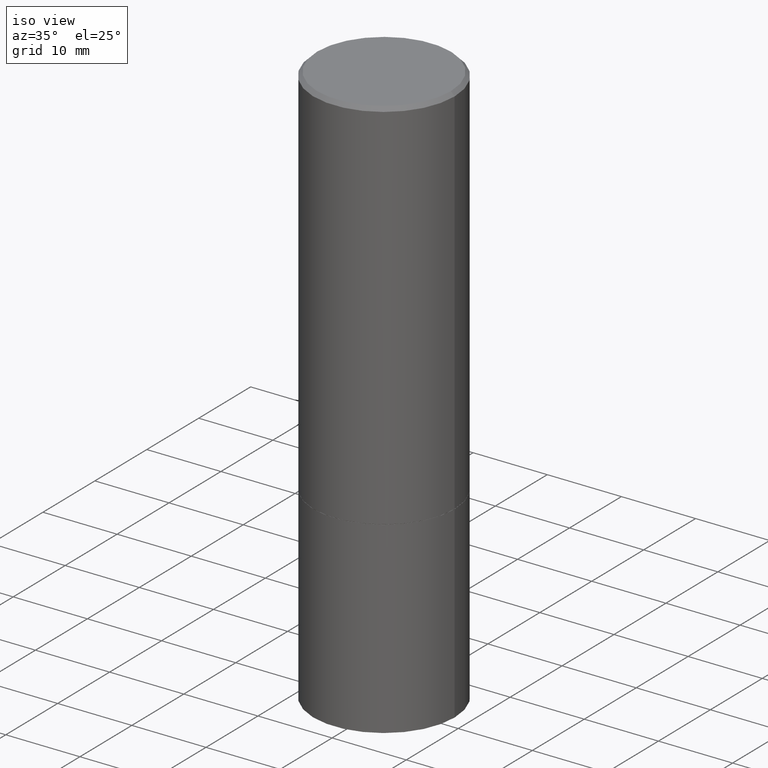
[diagram: clean part render]
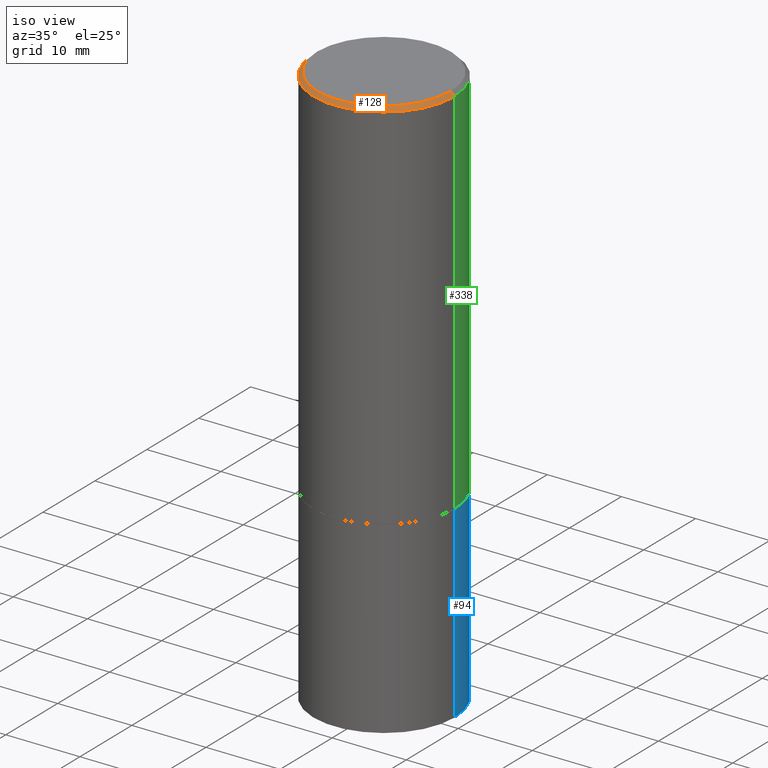
[diagram: same view with three faces highlighted in distinct colors, each labeled with its STEP entity id]
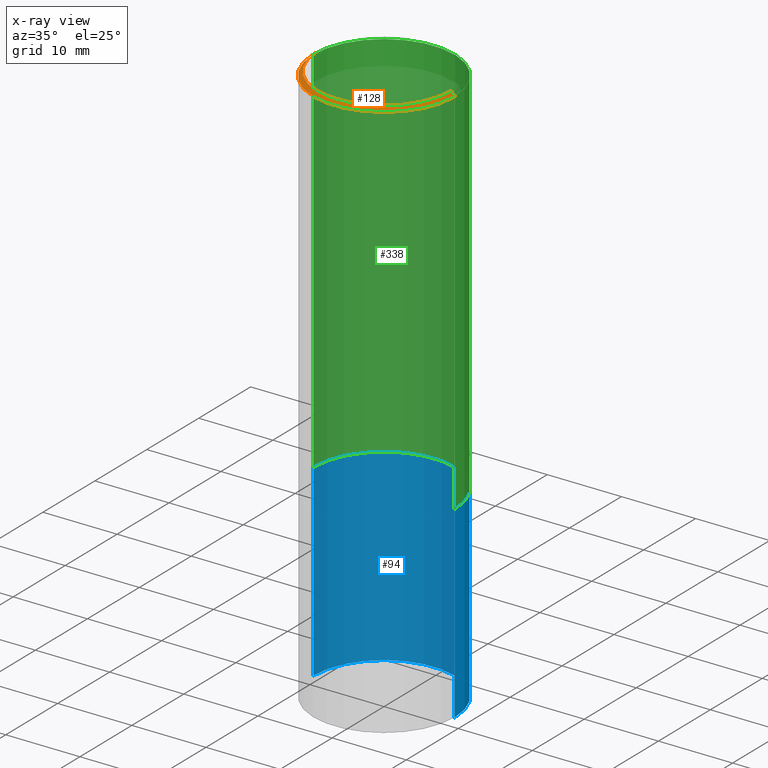
[diagram: x-ray of the same camera — body ghosted, the three highlighted faces saturated]
A machine part, iso view with three faces highlighted in distinct colors.
The next image is the same camera in x-ray (body ghosted, the three faces saturated) — at least one of them is partly hidden behind the body in this view.
Their STEP definitions:

[orange] entity #128 — the highlighted conical surface has half-angle 45 deg.
#4 = CIRCLE ( 'NONE', #238, 0.3749999999999996669 ) ;
#11 = DIRECTION ( 'NONE',  ( 0.7071067811865472397, -7.319954787623254468E-15, -0.7071067811865477948 ) ) ;
#19 = FACE_OUTER_BOUND ( 'NONE', #244, .T. ) ;
#28 = CARTESIAN_POINT ( 'NONE',  ( 0.3749999999999996669, -2.642516375941185662E-15, -0.02000000000000007327 ) ) ;
#35 = LINE ( 'NONE', #356, #44 ) ;
#40 = ORIENTED_EDGE ( 'NONE', *, *, #173, .F. ) ;
#42 = CARTESIAN_POINT ( 'NONE',  ( -1.043851414335219820E-46, 1.490343170380447200E-32, 4.268512490100411279E-18 ) ) ;
#44 = VECTOR ( 'NONE', #11, 39.37007874015748143 ) ;
#72 = CARTESIAN_POINT ( 'NONE',  ( 4.890937612370290675E-31, -6.982962677686316261E-17, -0.02000000000000007327 ) ) ;
#80 = ORIENTED_EDGE ( 'NONE', *, *, #155, .T. ) ;
#86 = VECTOR ( 'NONE', #310, 39.37007874015748143 ) ;
#102 = DIRECTION ( 'NONE',  ( 2.445468806185136597E-29, -3.491481338843145583E-15, -1.000000000000000000 ) ) ;
#106 = CARTESIAN_POINT ( 'NONE',  ( 0.3549999999999996492, -2.538996582575038287E-15, 4.268512490117958041E-18 ) ) ;
#107 = VERTEX_POINT ( 'NONE', #255 ) ;
#110 = EDGE_CURVE ( 'NONE', #107, #172, #235, .T. ) ;
#120 = CONICAL_SURFACE ( 'NONE', #353, 0.3749999999999996669, 0.7853981633974479459 ) ;
#128 = ADVANCED_FACE ( 'NONE', ( #19 ), #120, .T. ) ;
#134 = DIRECTION ( 'NONE',  ( 1.000000000000000000, -6.982962677686265922E-15, 4.876231632511992667E-29 ) ) ;
#141 = ORIENTED_EDGE ( 'NONE', *, *, #110, .T. ) ;
#147 = CIRCLE ( 'NONE', #254, 0.3549999999999996492 ) ;
#155 = EDGE_CURVE ( 'NONE', #172, #306, #4, .T. ) ;
#162 = DIRECTION ( 'NONE',  ( -2.445468806185136597E-29, 3.491481338843145583E-15, 1.000000000000000000 ) ) ;
#163 = ORIENTED_EDGE ( 'NONE', *, *, #192, .F. ) ;
#172 = VERTEX_POINT ( 'NONE', #324 ) ;
#173 = EDGE_CURVE ( 'NONE', #193, #306, #35, .T. ) ;
#192 = EDGE_CURVE ( 'NONE', #107, #193, #147, .T. ) ;
#193 = VERTEX_POINT ( 'NONE', #106 ) ;
#215 = DIRECTION ( 'NONE',  ( -1.000000000000000000, 6.982962677686266711E-15, 0.000000000000000000 ) ) ;
#235 = LINE ( 'NONE', #346, #86 ) ;
#237 = DIRECTION ( 'NONE',  ( -2.445468806185136597E-29, 3.491481338843145583E-15, 1.000000000000000000 ) ) ;
#238 = AXIS2_PLACEMENT_3D ( 'NONE', #72, #237, #245 ) ;
#244 = EDGE_LOOP ( 'NONE', ( #40, #163, #141, #80 ) ) ;
#245 = DIRECTION ( 'NONE',  ( 1.000000000000000000, -6.982962677686266711E-15, 0.000000000000000000 ) ) ;
#254 = AXIS2_PLACEMENT_3D ( 'NONE', #42, #162, #134 ) ;
#255 = CARTESIAN_POINT ( 'NONE',  ( -0.3549999999999996492, 2.513866563967053097E-15, 4.268512490082953109E-18 ) ) ;
#295 = CARTESIAN_POINT ( 'NONE',  ( 4.890937612370290675E-31, -6.982962677686316261E-17, -0.02000000000000007327 ) ) ;
#306 = VERTEX_POINT ( 'NONE', #28 ) ;
#310 = DIRECTION ( 'NONE',  ( -0.7071067811865472397, 2.468850131082253905E-15, -0.7071067811865477948 ) ) ;
#324 = CARTESIAN_POINT ( 'NONE',  ( -0.3749999999999996669, 2.548781377355484352E-15, -0.02000000000000007327 ) ) ;
#346 = CARTESIAN_POINT ( 'NONE',  ( -0.3749999999999996669, 2.548781377355484352E-15, -0.02000000000000007327 ) ) ;
#353 = AXIS2_PLACEMENT_3D ( 'NONE', #295, #102, #215 ) ;
#356 = CARTESIAN_POINT ( 'NONE',  ( 0.3749999999999996669, -2.642516375941185662E-15, -0.02000000000000007327 ) ) ;

[blue] entity #94 — the highlighted cylindrical surface (partial cylindrical patch) has radius 9.525 mm, axis along (-0, 0, 1).
#7 = CARTESIAN_POINT ( 'NONE',  ( 0.000000000000000000, 0.000000000000000000, 0.000000000000000000 ) ) ;
#9 = EDGE_CURVE ( 'NONE', #49, #111, #161, .T. ) ;
#18 = EDGE_LOOP ( 'NONE', ( #45, #333, #269, #364 ) ) ;
#30 = LINE ( 'NONE', #198, #38 ) ;
#31 = EDGE_CURVE ( 'NONE', #222, #49, #151, .T. ) ;
#37 = AXIS2_PLACEMENT_3D ( 'NONE', #224, #267, #216 ) ;
#38 = VECTOR ( 'NONE', #142, 39.37007874015748143 ) ;
#45 = ORIENTED_EDGE ( 'NONE', *, *, #66, .T. ) ;
#49 = VERTEX_POINT ( 'NONE', #344 ) ;
#53 = CARTESIAN_POINT ( 'NONE',  ( -0.3750000000000000555, -6.064168088007489246E-15, -2.000000000000000444 ) ) ;
#61 = CYLINDRICAL_SURFACE ( 'NONE', #278, 0.3750000000000000555 ) ;
#66 = EDGE_CURVE ( 'NONE', #222, #67, #152, .T. ) ;
#67 = VERTEX_POINT ( 'NONE', #91 ) ;
#91 = CARTESIAN_POINT ( 'NONE',  ( -0.3750000000000000555, -6.064168088007489246E-15, -3.000000000000000444 ) ) ;
#94 = ADVANCED_FACE ( 'NONE', ( #202 ), #61, .T. ) ;
#111 = VERTEX_POINT ( 'NONE', #53 ) ;
#119 = DIRECTION ( 'NONE',  ( -2.445468806185136597E-29, 3.491481338843145583E-15, 1.000000000000000000 ) ) ;
#139 = VECTOR ( 'NONE', #180, 39.37007874015748143 ) ;
#142 = DIRECTION ( 'NONE',  ( -2.445468806185136877E-29, 3.491481338843145188E-15, 1.000000000000000000 ) ) ;
#150 = CARTESIAN_POINT ( 'NONE',  ( 7.336406418555409790E-29, -1.047444401652943635E-14, -3.000000000000000444 ) ) ;
#151 = LINE ( 'NONE', #233, #139 ) ;
#152 = CIRCLE ( 'NONE', #211, 0.3750000000000000555 ) ;
#161 = CIRCLE ( 'NONE', #37, 0.3750000000000000555 ) ;
#180 = DIRECTION ( 'NONE',  ( -2.445468806185136877E-29, 3.491481338843145188E-15, 1.000000000000000000 ) ) ;
#198 = CARTESIAN_POINT ( 'NONE',  ( -0.3750000000000000555, 2.664535259100376091E-15, -1.844600658845589598E-29 ) ) ;
#202 = FACE_OUTER_BOUND ( 'NONE', #18, .T. ) ;
#206 = DIRECTION ( 'NONE',  ( -2.445468806185136597E-29, 3.491481338843145583E-15, 1.000000000000000000 ) ) ;
#211 = AXIS2_PLACEMENT_3D ( 'NONE', #150, #206, #317 ) ;
#216 = DIRECTION ( 'NONE',  ( 1.000000000000000000, -6.982962677686266711E-15, 0.000000000000000000 ) ) ;
#219 = CARTESIAN_POINT ( 'NONE',  ( 0.3750000000000000555, -1.309305502066178795E-14, -3.000000000000000444 ) ) ;
#222 = VERTEX_POINT ( 'NONE', #219 ) ;
#224 = CARTESIAN_POINT ( 'NONE',  ( 4.890937612370273754E-29, -6.982962677686291954E-15, -2.000000000000000444 ) ) ;
#233 = CARTESIAN_POINT ( 'NONE',  ( 0.3750000000000000555, -2.618611004132350016E-15, 1.828566290923476203E-29 ) ) ;
#267 = DIRECTION ( 'NONE',  ( -2.445468806185136597E-29, 3.491481338843145583E-15, 1.000000000000000000 ) ) ;
#269 = ORIENTED_EDGE ( 'NONE', *, *, #9, .F. ) ;
#277 = DIRECTION ( 'NONE',  ( 1.000000000000000000, -6.982962677686265922E-15, 4.876176775795935793E-29 ) ) ;
#278 = AXIS2_PLACEMENT_3D ( 'NONE', #7, #119, #277 ) ;
#290 = EDGE_CURVE ( 'NONE', #67, #111, #30, .T. ) ;
#317 = DIRECTION ( 'NONE',  ( 1.000000000000000000, -6.982962677686266711E-15, 0.000000000000000000 ) ) ;
#333 = ORIENTED_EDGE ( 'NONE', *, *, #290, .T. ) ;
#344 = CARTESIAN_POINT ( 'NONE',  ( 0.3750000000000000555, -9.601573681818641971E-15, -2.000000000000000444 ) ) ;
#364 = ORIENTED_EDGE ( 'NONE', *, *, #31, .F. ) ;

[green] entity #338 — the highlighted cylindrical surface (partial cylindrical patch) has radius 9.525 mm, axis along (-0, 0, 1).
#3 = CARTESIAN_POINT ( 'NONE',  ( -0.3749999999999999445, -8.601151524617780590E-16, -1.999000000000000110 ) ) ;
#26 = FACE_OUTER_BOUND ( 'NONE', #77, .T. ) ;
#28 = CARTESIAN_POINT ( 'NONE',  ( 0.3749999999999996669, -2.642516375941185662E-15, -0.02000000000000007327 ) ) ;
#41 = ORIENTED_EDGE ( 'NONE', *, *, #266, .T. ) ;
#51 = VERTEX_POINT ( 'NONE', #312 ) ;
#74 = CARTESIAN_POINT ( 'NONE',  ( 4.890937612370290675E-31, -6.982962677686316261E-17, -0.02000000000000007327 ) ) ;
#77 = EDGE_LOOP ( 'NONE', ( #135, #41, #220, #248 ) ) ;
#88 = VERTEX_POINT ( 'NONE', #3 ) ;
#114 = DIRECTION ( 'NONE',  ( 1.000000000000000000, -6.982962677686264344E-15, 0.000000000000000000 ) ) ;
#135 = ORIENTED_EDGE ( 'NONE', *, *, #228, .T. ) ;
#164 = DIRECTION ( 'NONE',  ( 1.000000000000000000, -6.982962677686266711E-15, 0.000000000000000000 ) ) ;
#170 = CIRCLE ( 'NONE', #178, 0.3749999999999996669 ) ;
#172 = VERTEX_POINT ( 'NONE', #324 ) ;
#178 = AXIS2_PLACEMENT_3D ( 'NONE', #74, #191, #164 ) ;
#190 = AXIS2_PLACEMENT_3D ( 'NONE', #279, #270, #303 ) ;
#191 = DIRECTION ( 'NONE',  ( -2.445468806185136597E-29, 3.491481338843145583E-15, 1.000000000000000000 ) ) ;
#199 = EDGE_CURVE ( 'NONE', #306, #172, #170, .T. ) ;
#205 = VECTOR ( 'NONE', #221, 39.37007874015748143 ) ;
#220 = ORIENTED_EDGE ( 'NONE', *, *, #199, .F. ) ;
#221 = DIRECTION ( 'NONE',  ( -2.445468806185136877E-29, 3.491481338843145188E-15, 1.000000000000000000 ) ) ;
#227 = CARTESIAN_POINT ( 'NONE',  ( 4.888492143564088712E-29, -6.979471196347448158E-15, -1.999000000000000110 ) ) ;
#228 = EDGE_CURVE ( 'NONE', #51, #88, #292, .T. ) ;
#248 = ORIENTED_EDGE ( 'NONE', *, *, #264, .F. ) ;
#253 = CARTESIAN_POINT ( 'NONE',  ( 0.3749999999999998335, -2.618611004132348439E-15, 1.828566290923475082E-29 ) ) ;
#257 = AXIS2_PLACEMENT_3D ( 'NONE', #227, #341, #114 ) ;
#264 = EDGE_CURVE ( 'NONE', #51, #306, #362, .T. ) ;
#266 = EDGE_CURVE ( 'NONE', #88, #172, #331, .T. ) ;
#270 = DIRECTION ( 'NONE',  ( -2.445468806185136597E-29, 3.491481338843145583E-15, 1.000000000000000000 ) ) ;
#276 = CARTESIAN_POINT ( 'NONE',  ( -0.3749999999999998335, 2.664535259100374514E-15, -1.844600658845588757E-29 ) ) ;
#279 = CARTESIAN_POINT ( 'NONE',  ( 0.000000000000000000, 0.000000000000000000, 0.000000000000000000 ) ) ;
#286 = VECTOR ( 'NONE', #365, 39.37007874015748143 ) ;
#292 = CIRCLE ( 'NONE', #257, 0.3750000000000000555 ) ;
#303 = DIRECTION ( 'NONE',  ( 1.000000000000000000, -6.982962677686265922E-15, 4.876176775795935793E-29 ) ) ;
#306 = VERTEX_POINT ( 'NONE', #28 ) ;
#309 = CYLINDRICAL_SURFACE ( 'NONE', #190, 0.3749999999999998335 ) ;
#312 = CARTESIAN_POINT ( 'NONE',  ( 0.3750000000000000555, -9.598082200479797386E-15, -1.999000000000000110 ) ) ;
#324 = CARTESIAN_POINT ( 'NONE',  ( -0.3749999999999996669, 2.548781377355484352E-15, -0.02000000000000007327 ) ) ;
#331 = LINE ( 'NONE', #276, #286 ) ;
#338 = ADVANCED_FACE ( 'NONE', ( #26 ), #309, .T. ) ;
#341 = DIRECTION ( 'NONE',  ( -2.445468806185136597E-29, 3.491481338843145583E-15, 1.000000000000000000 ) ) ;
#362 = LINE ( 'NONE', #253, #205 ) ;
#365 = DIRECTION ( 'NONE',  ( -2.445468806185136877E-29, 3.491481338843145188E-15, 1.000000000000000000 ) ) ;